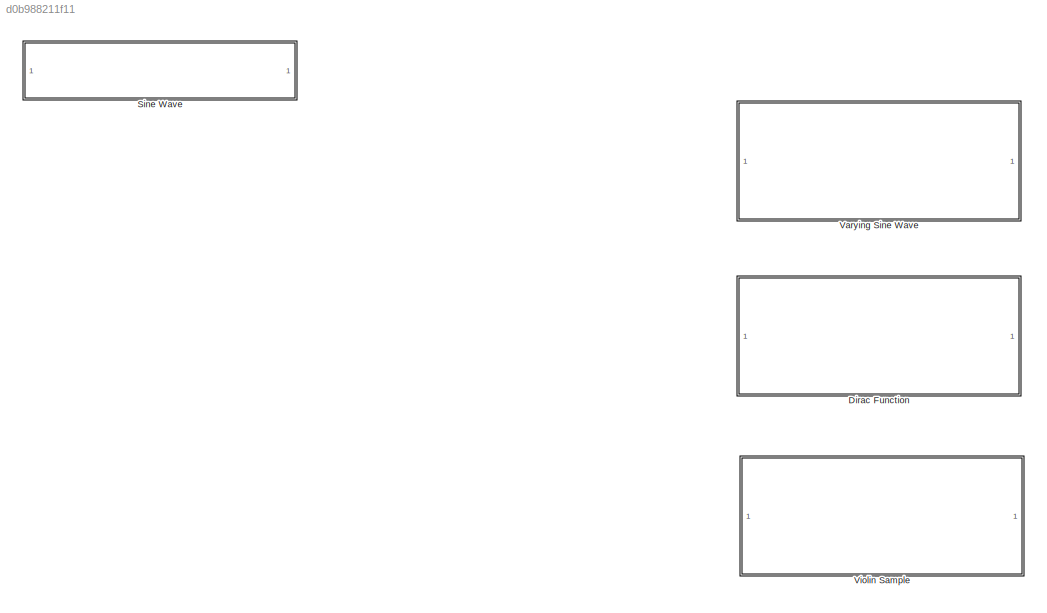
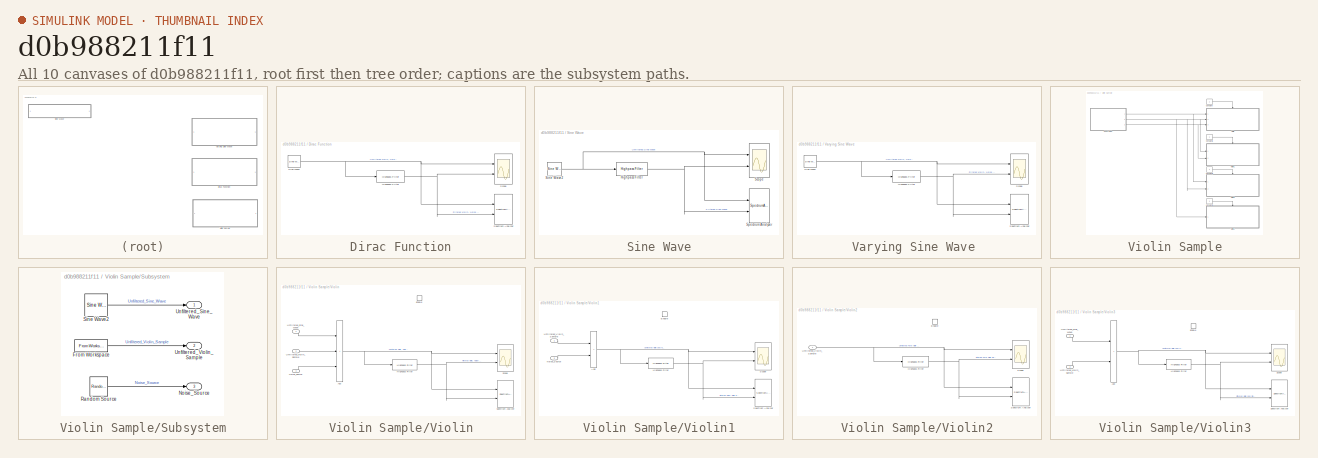
[diagram: thumbnail index - all 10 canvases of the model, root first then tree order]
MODEL slx_d0b988211f11
KIND model
CONFIG AbsTol = auto
CONFIG EnableMultiTasking = off
CONFIG FixedStep = .000000001
CONFIG MaxStep = auto
CONFIG MinStep = auto
CONFIG RelTol = 1e-3
CONFIG SampleTimeConstraint = Unconstrained
CONFIG SolverName = VariableStepAuto
CONFIG StartTime = 0.0
CONFIG StopTime = 10.0
BLOCK [SubSystem] Dirac Function
  Ports = []
  RequestExecContextInheritance = off
BLOCK [Reference] Dirac Function/Highpass Filter  REF=dspfdesign/Highpass Filter
  Ports = [1, 1]
  SourceBlock = dspfdesign/Highpass Filter
  SourceProductBaseCode = DS
  SourceType = dsp.simulink.HighpassFilter
BLOCK [Scope] Dirac Function/Scope
  Floating = off
  NumInputPorts = 2
  Ports = [2]
  ScopeSpecificationString = Simulink.scopes.TimeScopeBlockCfg('CurrentConfiguration', extmgr.ConfigurationSet(extmgr.Configuration('Core','General UI',true),extmgr.Configuration('Core','Source UI',true),extmgr.Configuration('Sources','WiredSimulink',true),extmgr.Configuration('Visuals','Time Domain',true,'SerializedDisplays',{struct('MinYLimReal','-1.33045','MaxYLimReal','1.29057','YLabelReal','','MinYLimMag','0.00000','MaxY...<+2219ch>
BLOCK [Reference] Dirac Function/Sine Wave  REF=dspsrcs4/Sine Wave
  Ports = [0, 1]
  SourceBlock = dspsrcs4/Sine Wave
  SourceProductBaseCode = DS
  SourceType = Sine Wave
BLOCK [SpectrumAnalyzer] Dirac Function/Spectrum Analyzer
  NumInputPorts = 2
  Ports = [2]
  ScopeSpecificationString = spbscopes.SpectrumAnalyzerBlockCfg('CurrentConfiguration', extmgr.ConfigurationSet(extmgr.Configuration('Core','General UI',true),extmgr.Configuration('Core','Source UI',true),extmgr.Configuration('Sources','WiredSimulink',true),extmgr.Configuration('Visuals','Spectrum',true,'AxesProperties',struct('Color',{[0 0 0],[0 0 0]},'XColor',{[0.686274509803922 0.686274509803922 0.686274509803922],[0.68627...<+3606ch>
BLOCK [SubSystem] Sine Wave
  Commented = on
  Ports = []
  RequestExecContextInheritance = off
BLOCK [Reference] Sine Wave/Highpass Filter  REF=dspfdesign/Highpass Filter
  Ports = [1, 1]
  SourceBlock = dspfdesign/Highpass Filter
  SourceProductBaseCode = DS
  SourceType = dsp.simulink.HighpassFilter
BLOCK [Scope] Sine Wave/Scope
  Floating = off
  NumInputPorts = 2
  Ports = [2]
  ScopeSpecificationString = Simulink.scopes.TimeScopeBlockCfg('CurrentConfiguration', extmgr.ConfigurationSet(extmgr.Configuration('Core','General UI',true),extmgr.Configuration('Core','Source UI',true),extmgr.Configuration('Sources','WiredSimulink',true),extmgr.Configuration('Visuals','Time Domain',true,'SerializedDisplays',{struct('MinYLimReal','-1.18882','MaxYLimReal','1.18882','YLabelReal','','MinYLimMag','0.00000','MaxY...<+1361ch>
BLOCK [Reference] Sine Wave/Sine Wave2  REF=dspsrcs4/Sine Wave
  Ports = [0, 1]
  SourceBlock = dspsrcs4/Sine Wave
  SourceProductBaseCode = DS
  SourceType = Sine Wave
BLOCK [SpectrumAnalyzer] Sine Wave/Spectrum Analyzer
  NumInputPorts = 2
  Ports = [2]
  ScopeSpecificationString = spbscopes.SpectrumAnalyzerBlockCfg('CurrentConfiguration', extmgr.ConfigurationSet(extmgr.Configuration('Core','General UI',true),extmgr.Configuration('Core','Source UI',true),extmgr.Configuration('Sources','WiredSimulink',true),extmgr.Configuration('Visuals','Spectrum',true,'AxesProperties',struct('Color',{[0 0 0],[0 0 0]},'XColor',{[0.686274509803922 0.686274509803922 0.686274509803922],[0.68627...<+2142ch>
BLOCK [SubSystem] Varying Sine Wave 
  Ports = []
  RequestExecContextInheritance = off
BLOCK [Reference] Varying Sine Wave /Highpass Filter  REF=dspfdesign/Highpass Filter
  Ports = [1, 1]
  SourceBlock = dspfdesign/Highpass Filter
  SourceProductBaseCode = DS
  SourceType = dsp.simulink.HighpassFilter
BLOCK [Scope] Varying Sine Wave /Scope
  Floating = off
  NumInputPorts = 2
  Ports = [2]
  ScopeSpecificationString = Simulink.scopes.TimeScopeBlockCfg('CurrentConfiguration', extmgr.ConfigurationSet(extmgr.Configuration('Core','General UI',true),extmgr.Configuration('Core','Source UI',true),extmgr.Configuration('Sources','WiredSimulink',true),extmgr.Configuration('Visuals','Time Domain',true,'SerializedDisplays',{struct('MinYLimReal','-1.33045','MaxYLimReal','1.29057','YLabelReal','','MinYLimMag','0.00000','MaxY...<+2219ch>
BLOCK [Reference] Varying Sine Wave /Sine Wave  REF=dspsrcs4/Sine Wave
  Ports = [0, 1]
  SourceBlock = dspsrcs4/Sine Wave
  SourceProductBaseCode = DS
  SourceType = Sine Wave
BLOCK [SpectrumAnalyzer] Varying Sine Wave /Spectrum Analyzer
  NumInputPorts = 2
  Ports = [2]
  ScopeSpecificationString = spbscopes.SpectrumAnalyzerBlockCfg('CurrentConfiguration', extmgr.ConfigurationSet(extmgr.Configuration('Core','General UI',true),extmgr.Configuration('Core','Source UI',true),extmgr.Configuration('Sources','WiredSimulink',true),extmgr.Configuration('Visuals','Spectrum',true,'AxesProperties',struct('Color',{[0 0 0],[0 0 0]},'XColor',{[0.686274509803922 0.686274509803922 0.686274509803922],[0.68627...<+3626ch>
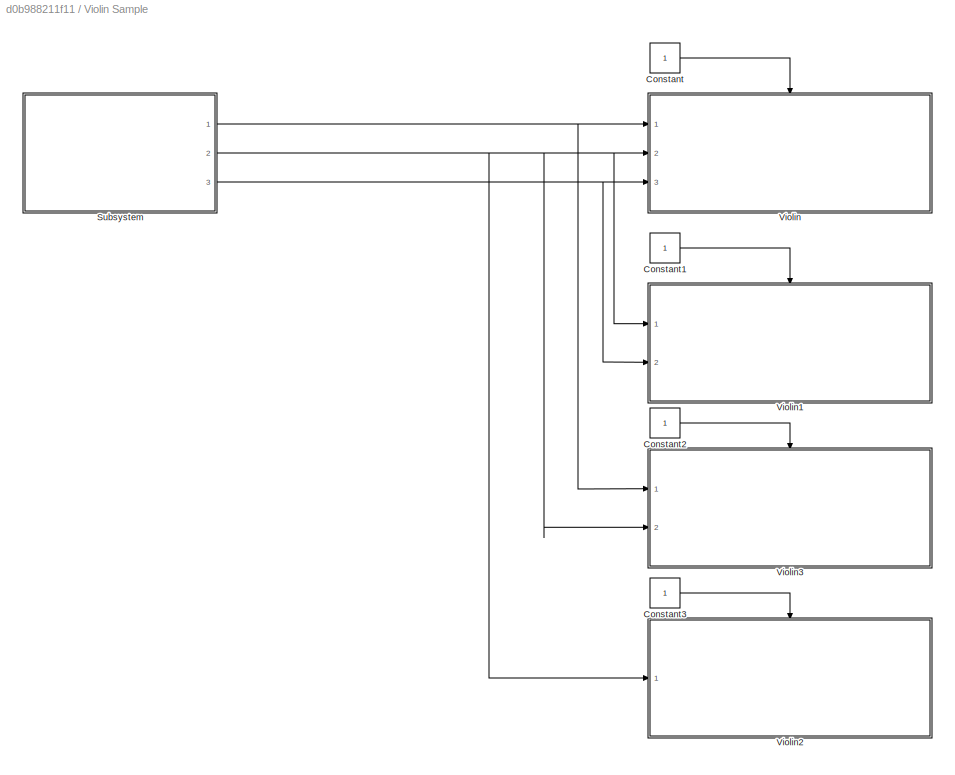
BLOCK [SubSystem] Violin Sample
  Ports = []
  RequestExecContextInheritance = off
BLOCK [Constant] Violin Sample/Constant
  OutDataTypeStr = boolean
BLOCK [Constant] Violin Sample/Constant1
  OutDataTypeStr = boolean
BLOCK [Constant] Violin Sample/Constant2
  OutDataTypeStr = boolean
BLOCK [Constant] Violin Sample/Constant3
  OutDataTypeStr = boolean
BLOCK [SubSystem] Violin Sample/Subsystem
  Ports = [0, 3]
  RequestExecContextInheritance = off
BLOCK [FromWorkspace] Violin Sample/Subsystem/From Workspace
  SampleTime = -1
  VariableName = Unfiltered_Violin
BLOCK [Outport] Violin Sample/Subsystem/Noise_Source
  Port = 3
BLOCK [Reference] Violin Sample/Subsystem/Random Source  REF=dspsrcs4/Random
Source
  Ports = [0, 1]
  SourceBlock = dspsrcs4/Random\nSource
  SourceProductBaseCode = DS
  SourceType = Random Source
  UserDataPersistent = on
BLOCK [Reference] Violin Sample/Subsystem/Sine Wave2  REF=dspsrcs4/Sine Wave
  Ports = [0, 1]
  SourceBlock = dspsrcs4/Sine Wave
  SourceProductBaseCode = DS
  SourceType = Sine Wave
BLOCK [Outport] Violin Sample/Subsystem/Unfiltered_Sine_Wave
BLOCK [Outport] Violin Sample/Subsystem/Unfiltered_Violin_Sample
  Port = 2
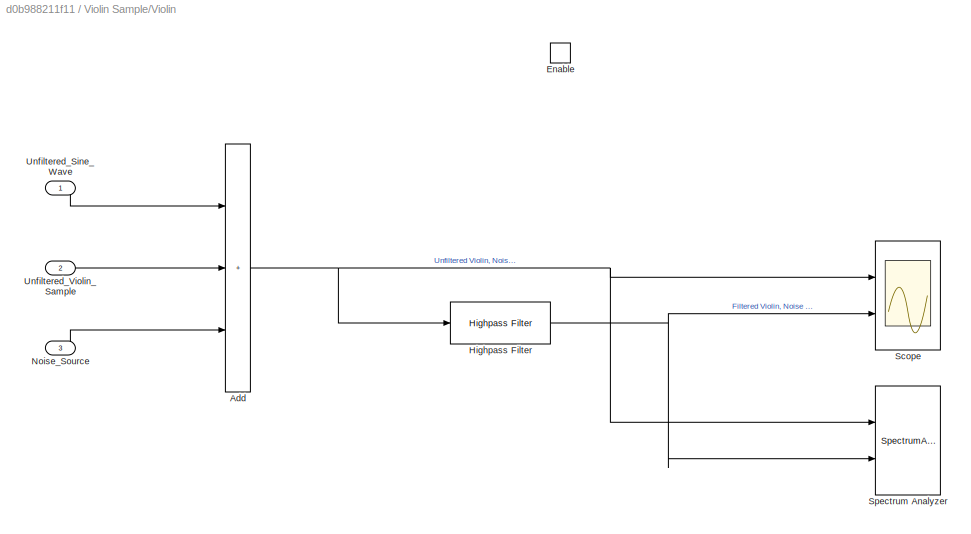
BLOCK [SubSystem] Violin Sample/Violin
  Ports = [3, 0, 1]
  RequestExecContextInheritance = off
BLOCK [Sum] Violin Sample/Violin/Add
  IconShape = rectangular
  Inputs = 3
  Ports = [3, 1]
BLOCK [EnablePort] Violin Sample/Violin/Enable
  Ports = []
BLOCK [Reference] Violin Sample/Violin/Highpass Filter  REF=dspfdesign/Highpass Filter
  Ports = [1, 1]
  SourceBlock = dspfdesign/Highpass Filter
  SourceProductBaseCode = DS
  SourceType = dsp.simulink.HighpassFilter
BLOCK [Inport] Violin Sample/Violin/Noise_Source
  Port = 3
BLOCK [Scope] Violin Sample/Violin/Scope
  Floating = off
  NumInputPorts = 2
  Ports = [2]
  ScopeSpecificationString = Simulink.scopes.TimeScopeBlockCfg('CurrentConfiguration', extmgr.ConfigurationSet(extmgr.Configuration('Core','General UI',true),extmgr.Configuration('Core','Source UI',true),extmgr.Configuration('Sources','WiredSimulink',true),extmgr.Configuration('Visuals','Time Domain',true,'SerializedDisplays',{struct('MinYLimReal','-0.76517','MaxYLimReal','2.29489','YLabelReal','','MinYLimMag','0.00000','MaxY...<+1401ch>
BLOCK [SpectrumAnalyzer] Violin Sample/Violin/Spectrum Analyzer
  NumInputPorts = 2
  Ports = [2]
  ScopeSpecificationString = spbscopes.SpectrumAnalyzerBlockCfg('CurrentConfiguration', extmgr.ConfigurationSet(extmgr.Configuration('Core','General UI',true),extmgr.Configuration('Core','Source UI',true),extmgr.Configuration('Sources','WiredSimulink',true),extmgr.Configuration('Visuals','Spectrum',true,'AxesProperties',struct('Color',{[0 0 0],[0 0 0]},'XColor',{[0.686274509803922 0.686274509803922 0.686274509803922],[0.68627...<+2233ch>
BLOCK [Inport] Violin Sample/Violin/Unfiltered_Sine_Wave
BLOCK [Inport] Violin Sample/Violin/Unfiltered_Violin_Sample
  Port = 2
BLOCK [SubSystem] Violin Sample/Violin1
  Ports = [2, 0, 1]
  RequestExecContextInheritance = off
BLOCK [Sum] Violin Sample/Violin1/Add
  IconShape = rectangular
  Inputs = 2
  Ports = [2, 1]
BLOCK [EnablePort] Violin Sample/Violin1/Enable
  Ports = []
BLOCK [Reference] Violin Sample/Violin1/Highpass Filter  REF=dspfdesign/Highpass Filter
  Ports = [1, 1]
  SourceBlock = dspfdesign/Highpass Filter
  SourceProductBaseCode = DS
  SourceType = dsp.simulink.HighpassFilter
BLOCK [Inport] Violin Sample/Violin1/Noise_Source
  Port = 2
BLOCK [Scope] Violin Sample/Violin1/Scope
  Floating = off
  NumInputPorts = 2
  Ports = [2]
  ScopeSpecificationString = Simulink.scopes.TimeScopeBlockCfg('CurrentConfiguration', extmgr.ConfigurationSet(extmgr.Configuration('Core','General UI',true),extmgr.Configuration('Core','Source UI',true),extmgr.Configuration('Sources','WiredSimulink',true),extmgr.Configuration('Visuals','Time Domain',true,'SerializedDisplays',{struct('MinYLimReal','-0.94709','MaxYLimReal','1.06017','YLabelReal','','MinYLimMag','0.00000','MaxY...<+1369ch>  <repeated x3 — deduplicated; at blocks: Scope>
BLOCK [SpectrumAnalyzer] Violin Sample/Violin1/Spectrum Analyzer
  NumInputPorts = 2
  Ports = [2]
  ScopeSpecificationString = spbscopes.SpectrumAnalyzerBlockCfg('CurrentConfiguration', extmgr.ConfigurationSet(extmgr.Configuration('Core','General UI',true),extmgr.Configuration('Core','Source UI',true),extmgr.Configuration('Sources','WiredSimulink',true),extmgr.Configuration('Visuals','Spectrum',true,'AxesProperties',struct('Color',{[0 0 0],[0 0 0]},'XColor',{[0.686274509803922 0.686274509803922 0.686274509803922],[0.68627...<+2230ch>
BLOCK [Inport] Violin Sample/Violin1/Unfiltered_Violin_Sample
BLOCK [SubSystem] Violin Sample/Violin2
  Ports = [1, 0, 1]
  RequestExecContextInheritance = off
BLOCK [EnablePort] Violin Sample/Violin2/Enable
  Ports = []
BLOCK [Reference] Violin Sample/Violin2/Highpass Filter  REF=dspfdesign/Highpass Filter
  Ports = [1, 1]
  SourceBlock = dspfdesign/Highpass Filter
  SourceProductBaseCode = DS
  SourceType = dsp.simulink.HighpassFilter
BLOCK [Scope] Violin Sample/Violin2/Scope
  Floating = off
  NumInputPorts = 2
  Ports = [2]
BLOCK [SpectrumAnalyzer] Violin Sample/Violin2/Spectrum Analyzer
  NumInputPorts = 2
  Ports = [2]
  ScopeSpecificationString = spbscopes.SpectrumAnalyzerBlockCfg('CurrentConfiguration', extmgr.ConfigurationSet(extmgr.Configuration('Core','General UI',true),extmgr.Configuration('Core','Source UI',true),extmgr.Configuration('Sources','WiredSimulink',true),extmgr.Configuration('Visuals','Spectrum',true,'AxesProperties',struct('Color',{[0 0 0],[0 0 0]},'XColor',{[0.686274509803922 0.686274509803922 0.686274509803922],[0.68627...<+2232ch>
BLOCK [Inport] Violin Sample/Violin2/Unfiltered_Violin_Sample
BLOCK [SubSystem] Violin Sample/Violin3
  Ports = [2, 0, 1]
  RequestExecContextInheritance = off
BLOCK [Sum] Violin Sample/Violin3/Add
  IconShape = rectangular
  Inputs = 2
  Ports = [2, 1]
BLOCK [EnablePort] Violin Sample/Violin3/Enable
  Ports = []
BLOCK [Reference] Violin Sample/Violin3/Highpass Filter  REF=dspfdesign/Highpass Filter
  Ports = [1, 1]
  SourceBlock = dspfdesign/Highpass Filter
  SourceProductBaseCode = DS
  SourceType = dsp.simulink.HighpassFilter
BLOCK [Scope] Violin Sample/Violin3/Scope
  Floating = off
  NumInputPorts = 2
  Ports = [2]
BLOCK [SpectrumAnalyzer] Violin Sample/Violin3/Spectrum Analyzer
  NumInputPorts = 2
  Ports = [2]
  ScopeSpecificationString = spbscopes.SpectrumAnalyzerBlockCfg('CurrentConfiguration', extmgr.ConfigurationSet(extmgr.Configuration('Core','General UI',true),extmgr.Configuration('Core','Source UI',true),extmgr.Configuration('Sources','WiredSimulink',true),extmgr.Configuration('Visuals','Spectrum',true,'AxesProperties',struct('Color',{[0 0 0],[0 0 0]},'XColor',{[0.686274509803922 0.686274509803922 0.686274509803922],[0.68627...<+2231ch>
BLOCK [Inport] Violin Sample/Violin3/Unfiltered_Sine_Wave
BLOCK [Inport] Violin Sample/Violin3/Unfiltered_Violin_Sample
  Port = 2
NET Dirac Function/Highpass Filter:1 -> Dirac Function/Scope:2, Dirac Function/Spectrum Analyzer:2
NET Dirac Function/Sine Wave:1 -> Dirac Function/Highpass Filter:1, Dirac Function/Scope:1, Dirac Function/Spectrum Analyzer:1
NET Sine Wave/Highpass Filter:1 -> Sine Wave/Scope:2, Sine Wave/Spectrum Analyzer:2
NET Sine Wave/Sine Wave2:1 -> Sine Wave/Highpass Filter:1, Sine Wave/Scope:1, Sine Wave/Spectrum Analyzer:1
NET Varying Sine Wave /Highpass Filter:1 -> Varying Sine Wave /Scope:2, Varying Sine Wave /Spectrum Analyzer:2
NET Varying Sine Wave /Sine Wave:1 -> Varying Sine Wave /Highpass Filter:1, Varying Sine Wave /Scope:1, Varying Sine Wave /Spectrum Analyzer:1
LINE Violin Sample/Constant1:1 -> Violin Sample/Violin1:enable
LINE Violin Sample/Constant2:1 -> Violin Sample/Violin3:enable
LINE Violin Sample/Constant3:1 -> Violin Sample/Violin2:enable
LINE Violin Sample/Constant:1 -> Violin Sample/Violin:enable
LINE Violin Sample/Subsystem/From Workspace:1 -> Violin Sample/Subsystem/Unfiltered_Violin_Sample:1
LINE Violin Sample/Subsystem/Random Source:1 -> Violin Sample/Subsystem/Noise_Source:1
LINE Violin Sample/Subsystem/Sine Wave2:1 -> Violin Sample/Subsystem/Unfiltered_Sine_Wave:1
NET Violin Sample/Subsystem:1 -> Violin Sample/Violin3:1, Violin Sample/Violin:1
NET Violin Sample/Subsystem:2 -> Violin Sample/Violin1:1, Violin Sample/Violin2:1, Violin Sample/Violin3:2, Violin Sample/Violin:2
NET Violin Sample/Subsystem:3 -> Violin Sample/Violin1:2, Violin Sample/Violin:3
NET Violin Sample/Violin/Add:1 -> Violin Sample/Violin/Highpass Filter:1, Violin Sample/Violin/Scope:1, Violin Sample/Violin/Spectrum Analyzer:1
NET Violin Sample/Violin/Highpass Filter:1 -> Violin Sample/Violin/Scope:2, Violin Sample/Violin/Spectrum Analyzer:2
LINE Violin Sample/Violin/Noise_Source:1 -> Violin Sample/Violin/Add:3
LINE Violin Sample/Violin/Unfiltered_Sine_Wave:1 -> Violin Sample/Violin/Add:1
LINE Violin Sample/Violin/Unfiltered_Violin_Sample:1 -> Violin Sample/Violin/Add:2
NET Violin Sample/Violin1/Add:1 -> Violin Sample/Violin1/Highpass Filter:1, Violin Sample/Violin1/Scope:1, Violin Sample/Violin1/Spectrum Analyzer:1
NET Violin Sample/Violin1/Highpass Filter:1 -> Violin Sample/Violin1/Scope:2, Violin Sample/Violin1/Spectrum Analyzer:2
LINE Violin Sample/Violin1/Noise_Source:1 -> Violin Sample/Violin1/Add:2
LINE Violin Sample/Violin1/Unfiltered_Violin_Sample:1 -> Violin Sample/Violin1/Add:1
NET Violin Sample/Violin2/Highpass Filter:1 -> Violin Sample/Violin2/Scope:2, Violin Sample/Violin2/Spectrum Analyzer:2
NET Violin Sample/Violin2/Unfiltered_Violin_Sample:1 -> Violin Sample/Violin2/Highpass Filter:1, Violin Sample/Violin2/Scope:1, Violin Sample/Violin2/Spectrum Analyzer:1
NET Violin Sample/Violin3/Add:1 -> Violin Sample/Violin3/Highpass Filter:1, Violin Sample/Violin3/Scope:1, Violin Sample/Violin3/Spectrum Analyzer:1
NET Violin Sample/Violin3/Highpass Filter:1 -> Violin Sample/Violin3/Scope:2, Violin Sample/Violin3/Spectrum Analyzer:2
LINE Violin Sample/Violin3/Unfiltered_Sine_Wave:1 -> Violin Sample/Violin3/Add:1
LINE Violin Sample/Violin3/Unfiltered_Violin_Sample:1 -> Violin Sample/Violin3/Add:2
note: NET lines group one-source signal fan-out (src -> all destinations, sorted); 1:1 wires keep LINE
